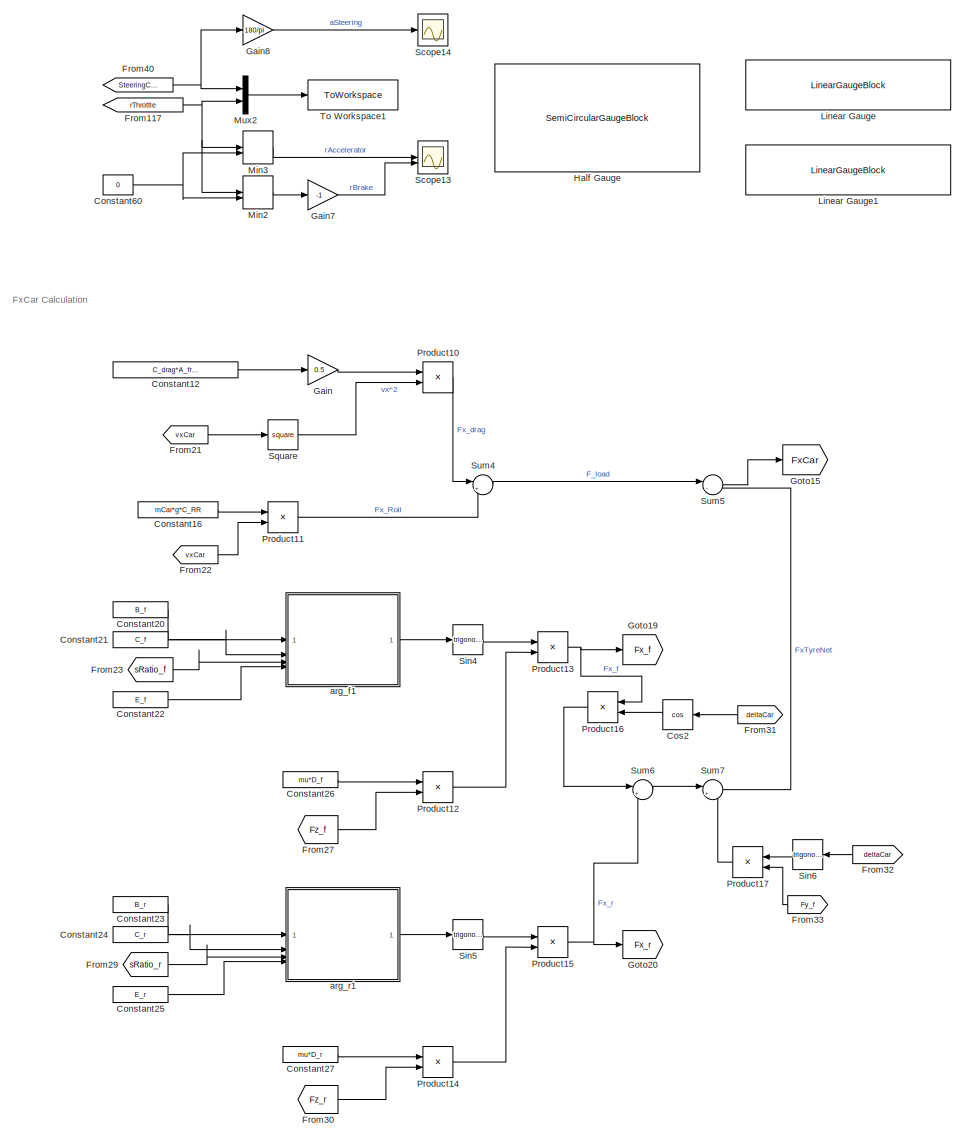
[diagram: root canvas - part 1/10, top center region]
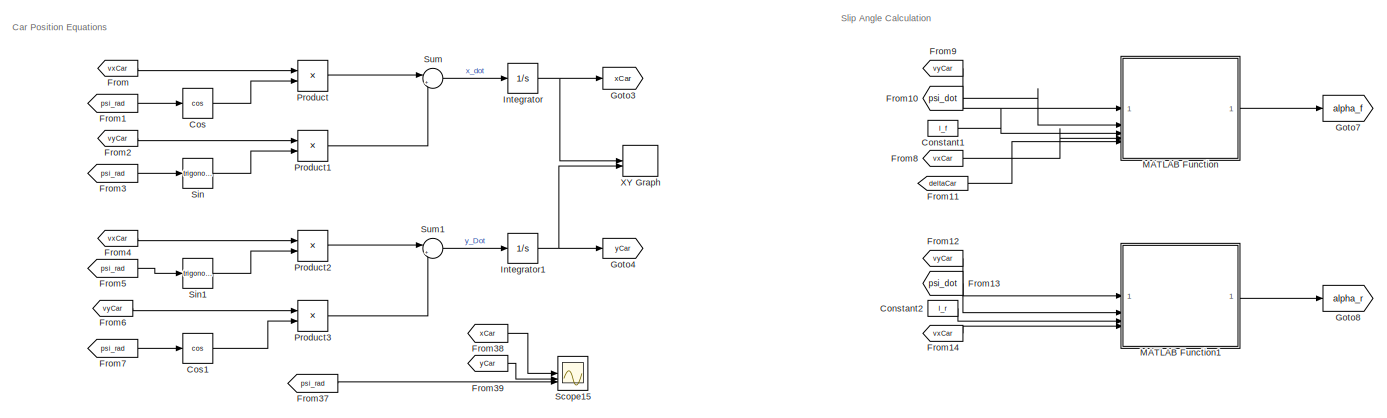
[diagram: root canvas - part 2/10, top left region]
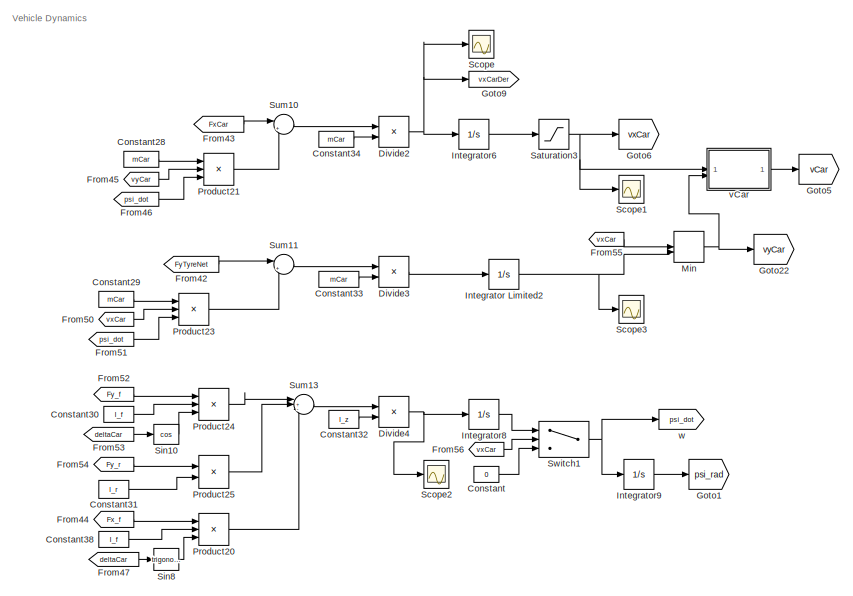
[diagram: root canvas - part 3/10, top center region]
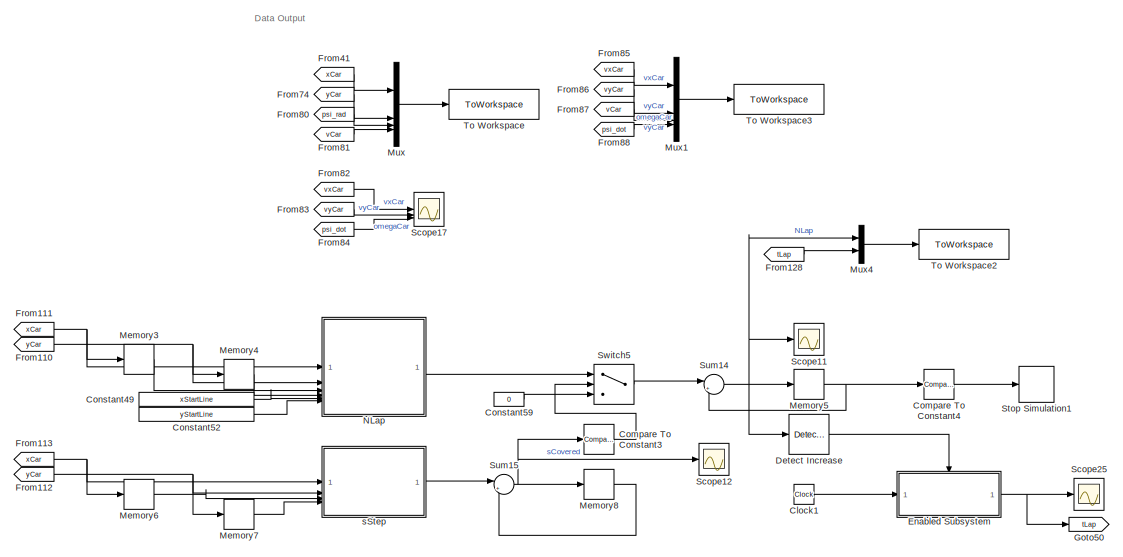
[diagram: root canvas - part 4/10, top right region]
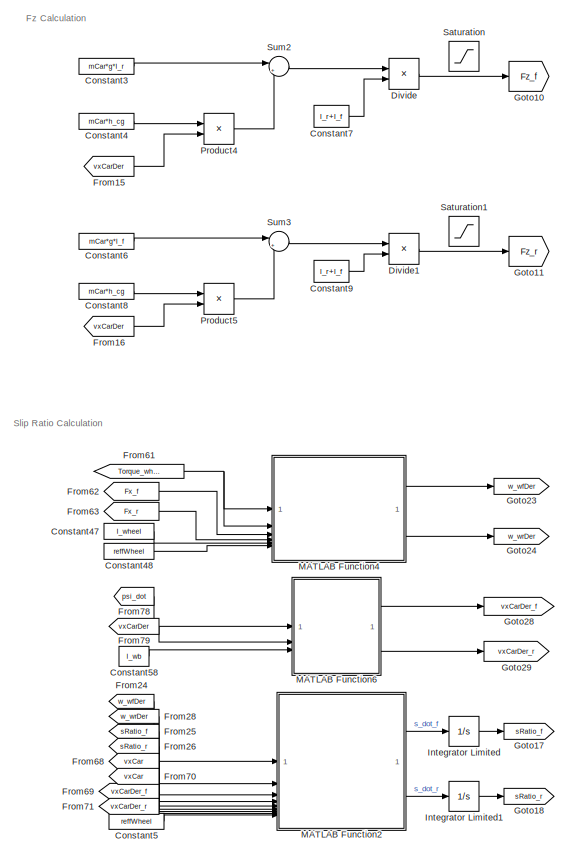
[diagram: root canvas - part 5/10, middle left region]
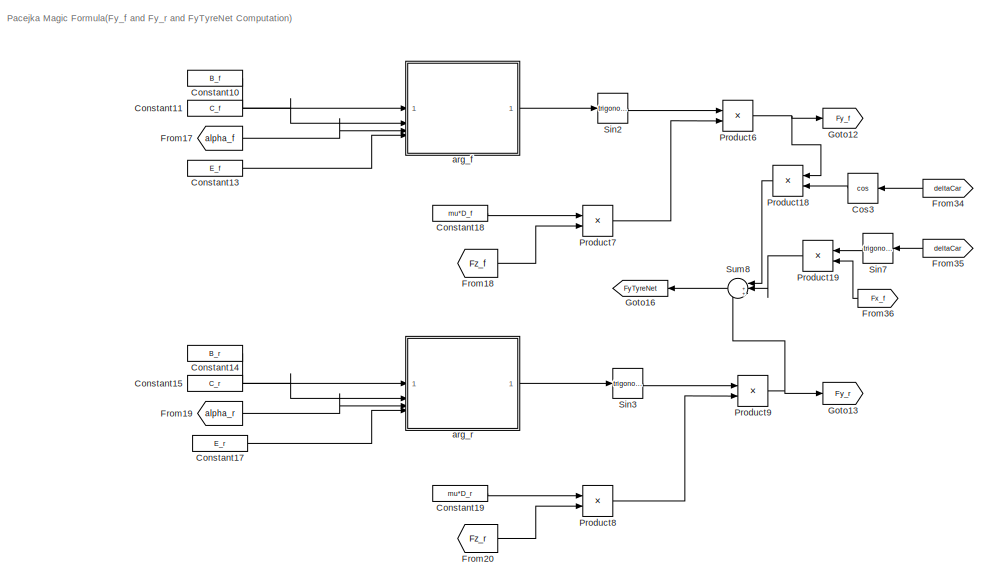
[diagram: root canvas - part 6/10, middle left region]
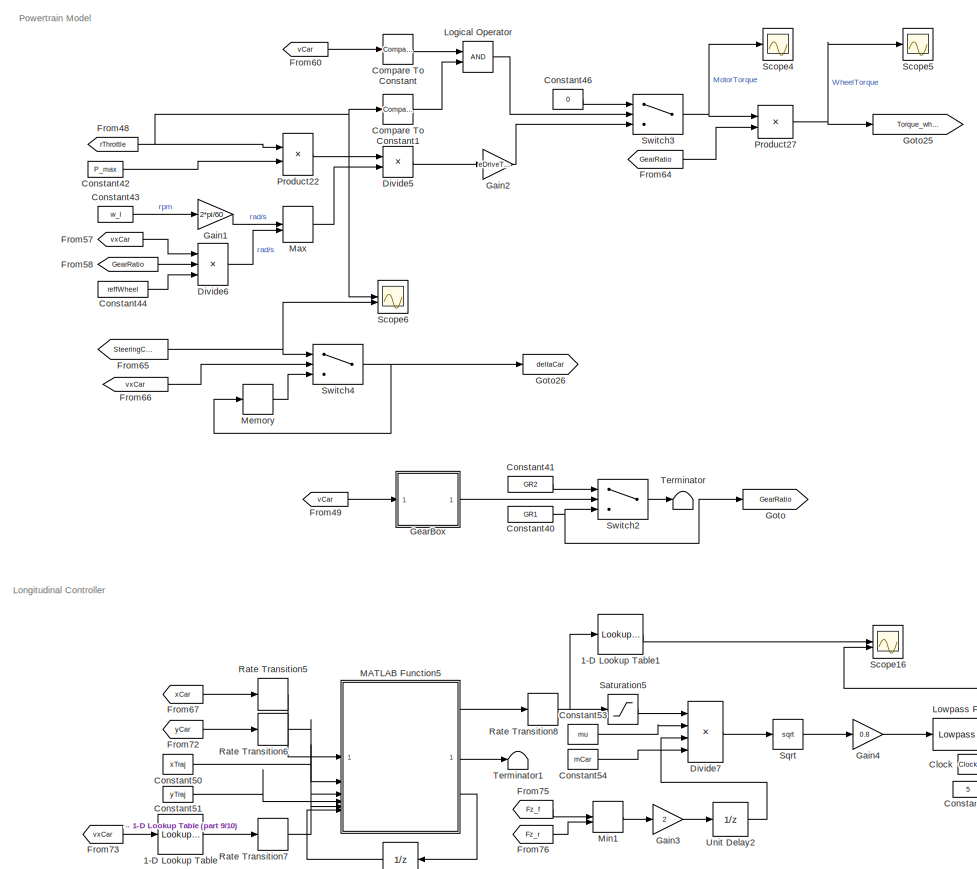
[diagram: root canvas - part 7/10, bottom right region]
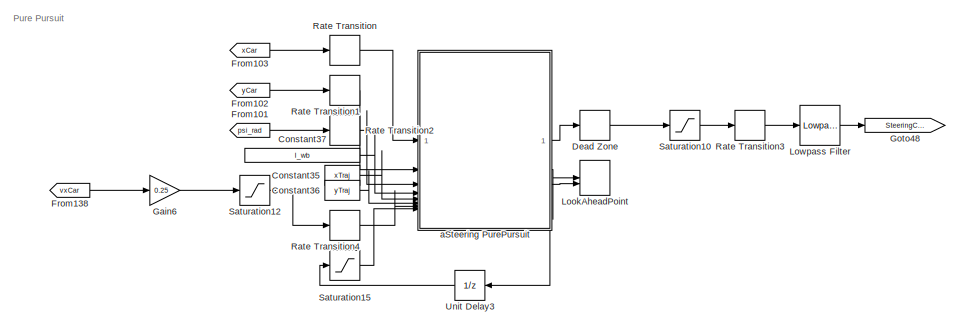
[diagram: root canvas - part 8/10, bottom center region]
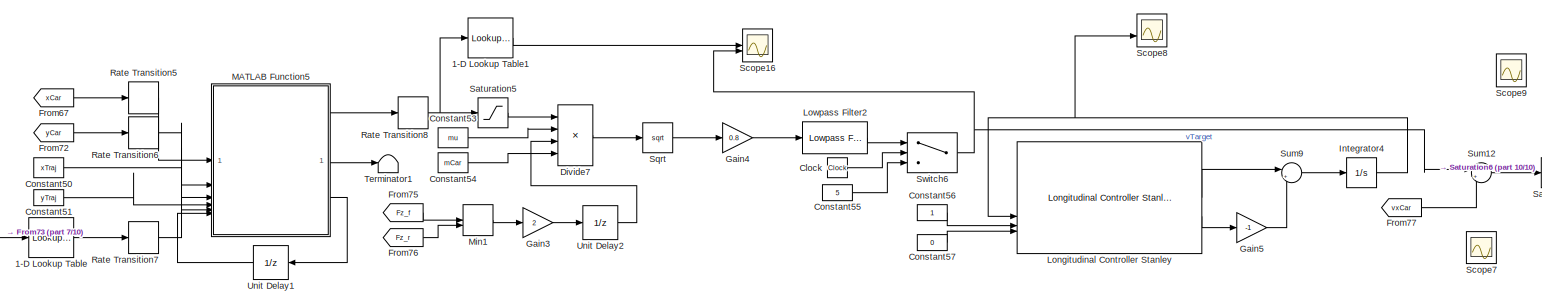
[diagram: root canvas - part 9/10, bottom right region]
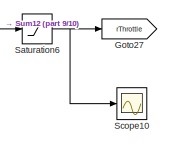
[diagram: root canvas - part 10/10, bottom right region]
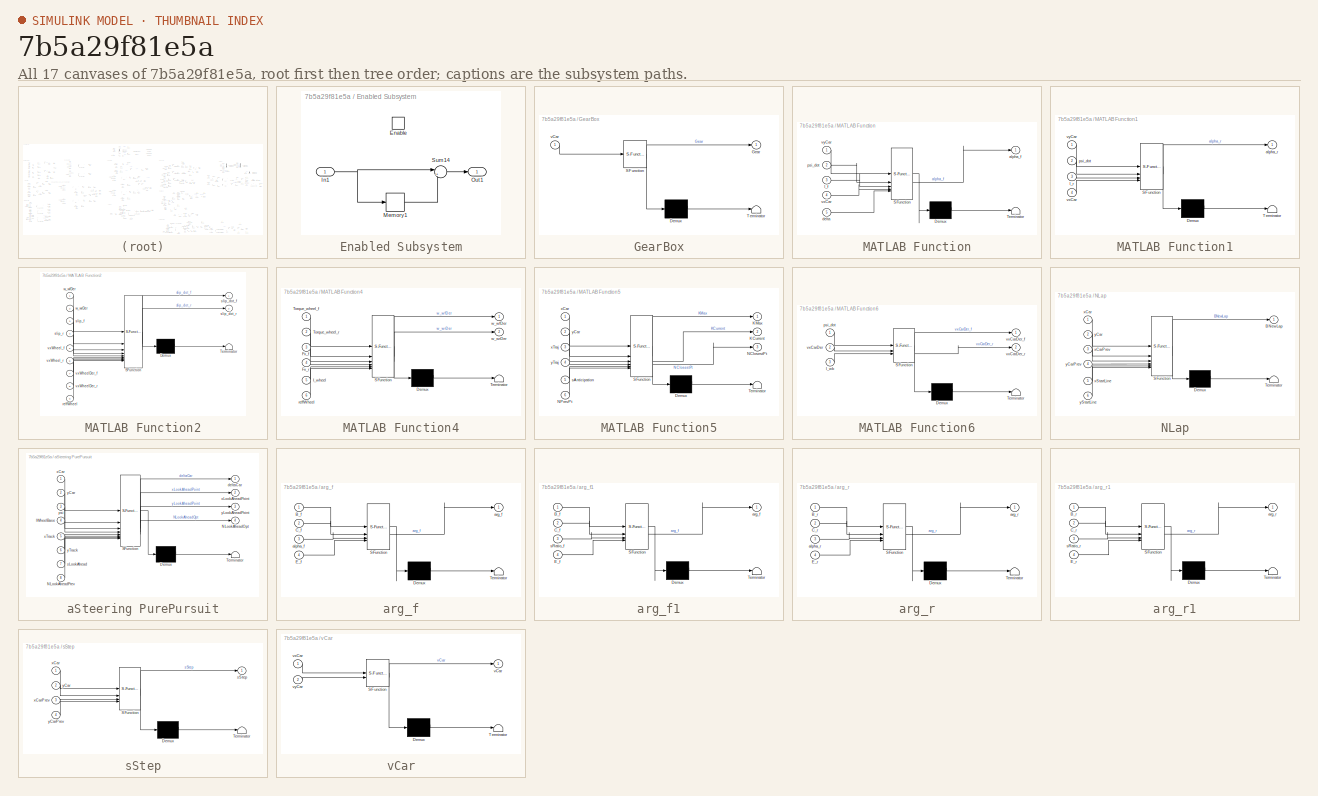
[diagram: thumbnail index - all 17 canvases of the model, root first then tree order]
MODEL slx_7b5a29f81e5a
KIND model
CONFIG AbsTol = auto
CONFIG EnableMultiTasking = off
CONFIG FixedStep = 1e-3
CONFIG MaxStep = auto
CONFIG MinStep = auto
CONFIG PreLoadFcn = addpath(genpath(pwd));\n\n% ======================================================================= %\n%% Physics Paramters\n\ng = 9.81;           % [m/s2]\nrho_air = 1.2;      % [kg/m3]\n\n% ======================================================================= %\n%% Tire Paramters\n\nmu = 1;           % [-]\n\nB_f = 3.12;\nB_r = 2.91;\nC_f = 2.23;\nC_r = 2.23;\nD_f = 0.72;\nD_r = 1.21;\nE_f = 0.23;\nE_r = 0.92;\n\n%...<+1539ch>
CONFIG RelTol = 1e-3
CONFIG SampleTimeConstraint = Unconstrained
CONFIG SolverName = FixedStepAuto
CONFIG StartTime = 0.0
CONFIG StopFcn = Data1=out.CarPosition.Data;\n\nfigure(2)\ncmap = colormap(jet);\ns=scatter(Data1(:,1),Data1(:,2),0.1,Data1(:,4),'.'); \nc=colorbar;\nylabel(c,'v_{Car} (m/s)')\n\nhold on\nplot(xCentre, yCentre, 'k')\nplot(xRightside,yRigthside,'k--')\nk=plot(xLeftside ,yLeftside ,'k--');\nsf=plot(xStartLine,yStartLine,'k-.');\n\ns.Annotation.LegendInformation.IconDisplayStyle = 'off';\nk.Annotation.LegendInformation.IconDisplayS...<+248ch>
CONFIG StopTime = 150
BLOCK [Lookup_n-D] 1-D Lookup Table
  BreakpointsForDimension1 = [7.5, 10, 15, 20]
  ExtrapMethod = Clip
  InputPortMap = u0
  InternalRulePriority = Speed
  NumberOfTableDimensions = 1
  RndMeth = Simplest
  Table = [5, 10, 25, 40]
BLOCK [Lookup_n-D] 1-D Lookup Table1
  BreakpointsForDimension1 = [0,0.04,0.1,0.2,0.3,0.5]*1
  ExtrapMethod = Clip
  InputPortMap = u0
  InternalRulePriority = Speed
  NumberOfTableDimensions = 1
  RndMeth = Simplest
  Table = [20, 10, 9, 6, 5, 4]
BLOCK [Clock] Clock
BLOCK [Clock] Clock1
BLOCK [Reference] Compare To Constant  REF=simulink/Logic and Bit
Operations/Compare
To Constant
  SourceBlock = simulink/Logic and Bit\nOperations/Compare\nTo Constant
  SourceType = Compare To Constant
BLOCK [Reference] Compare To Constant1  REF=simulink/Logic and Bit
Operations/Compare
To Constant
  SourceBlock = simulink/Logic and Bit\nOperations/Compare\nTo Constant
  SourceType = Compare To Constant
BLOCK [Reference] Compare To Constant3  REF=simulink/Logic and Bit
Operations/Compare
To Constant
  SourceBlock = simulink/Logic and Bit\nOperations/Compare\nTo Constant
  SourceType = Compare To Constant
BLOCK [Reference] Compare To Constant4  REF=simulink/Logic and Bit
Operations/Compare
To Constant
  SourceBlock = simulink/Logic and Bit\nOperations/Compare\nTo Constant
  SourceType = Compare To Constant
BLOCK [Constant] Constant
  Value = 0
BLOCK [Constant] Constant1
  Value = l_f
BLOCK [Constant] Constant10
  Value = B_f
BLOCK [Constant] Constant11
  Value = C_f
BLOCK [Constant] Constant12
  Value = C_drag*A_frontal*rho_air
BLOCK [Constant] Constant13
  Value = E_f
BLOCK [Constant] Constant14
  Value = B_r
BLOCK [Constant] Constant15
  Value = C_r
BLOCK [Constant] Constant16
  Value = mCar*g*C_RR
BLOCK [Constant] Constant17
  Value = E_r
BLOCK [Constant] Constant18
  Value = mu*D_f
BLOCK [Constant] Constant19
  Value = mu*D_r
BLOCK [Constant] Constant2
  Value = l_r
BLOCK [Constant] Constant20
  Value = B_f
BLOCK [Constant] Constant21
  Value = C_f
BLOCK [Constant] Constant22
  Value = E_f
BLOCK [Constant] Constant23
  Value = B_r
BLOCK [Constant] Constant24
  Value = C_r
BLOCK [Constant] Constant25
  Value = E_r
BLOCK [Constant] Constant26
  Value = mu*D_f
BLOCK [Constant] Constant27
  Value = mu*D_r
BLOCK [Constant] Constant28
  Value = mCar
BLOCK [Constant] Constant29
  Value = mCar
BLOCK [Constant] Constant3
  Value = mCar*g*l_r
BLOCK [Constant] Constant30
  Value = l_f
BLOCK [Constant] Constant31
  Value = l_r
BLOCK [Constant] Constant32
  Value = I_z
BLOCK [Constant] Constant33
  Value = mCar
BLOCK [Constant] Constant34
  Value = mCar
BLOCK [Constant] Constant35
  Value = xTraj
BLOCK [Constant] Constant36
  Value = yTraj
BLOCK [Constant] Constant37
  Value = l_wb
BLOCK [Constant] Constant38
  Value = l_f
BLOCK [Constant] Constant4
  Value = mCar*h_cg
BLOCK [Constant] Constant40
  Value = GR1
BLOCK [Constant] Constant41
  Value = GR2
BLOCK [Constant] Constant42
  Value = P_max
BLOCK [Constant] Constant43
  Value = w_l
BLOCK [Constant] Constant44
  Value = reffWheel
BLOCK [Constant] Constant46
  Value = 0
BLOCK [Constant] Constant47
  Value = I_wheel
BLOCK [Constant] Constant48
  Value = reffWheel
BLOCK [Constant] Constant49
  Value = xStartLine
BLOCK [Constant] Constant5
  Value = reffWheel
BLOCK [Constant] Constant50
  Value = xTraj
BLOCK [Constant] Constant51
  Value = yTraj
BLOCK [Constant] Constant52
  Value = yStartLine
BLOCK [Constant] Constant53
  Value = mu
BLOCK [Constant] Constant54
  Value = mCar
BLOCK [Constant] Constant55
  Value = 5
BLOCK [Constant] Constant56
  Commented = on
BLOCK [Constant] Constant57
  Commented = on
  Value = 0
BLOCK [Constant] Constant58
  Value = l_wb
BLOCK [Constant] Constant59
  Value = 0
BLOCK [Constant] Constant6
  Value = mCar*g*l_f
BLOCK [Constant] Constant60
  Value = 0
BLOCK [Constant] Constant7
  Value = l_r+l_f
BLOCK [Constant] Constant8
  Value = mCar*h_cg
BLOCK [Constant] Constant9
  Value = l_r+l_f
BLOCK [Trigonometry] Cos
  Operator = cos
BLOCK [Trigonometry] Cos1
  Operator = cos
BLOCK [Trigonometry] Cos2
  Operator = cos
BLOCK [Trigonometry] Cos3
  Operator = cos
BLOCK [DeadZone] Dead Zone
  LowerValue = -0.5*pi/180
  UpperValue = 0.5*pi/180
BLOCK [Reference] Detect Increase  REF=simulink/Logic and Bit
Operations/Detect
Increase
  SourceBlock = simulink/Logic and Bit\nOperations/Detect\nIncrease
  SourceType = Detect Increase
BLOCK [Product] Divide
  Inputs = */
BLOCK [Product] Divide1
  Inputs = */
BLOCK [Product] Divide2
  Inputs = */
BLOCK [Product] Divide3
  Inputs = */
BLOCK [Product] Divide4
  Inputs = */
BLOCK [Product] Divide5
  Inputs = */
BLOCK [Product] Divide6
  Inputs = **/
BLOCK [Product] Divide7
  Inputs = /**/
BLOCK [SubSystem] Enabled Subsystem
  TreatAsAtomicUnit = on
BLOCK [EnablePort] Enabled Subsystem/Enable
BLOCK [Inport] Enabled Subsystem/In1
BLOCK [Memory] Enabled Subsystem/Memory1
BLOCK [Outport] Enabled Subsystem/Out1
BLOCK [Sum] Enabled Subsystem/Sum14
  Inputs = |+-
BLOCK [From] From
  GotoTag = vxCar
BLOCK [From] From1
  GotoTag = psi_rad
BLOCK [From] From10
  GotoTag = psi_dot
BLOCK [From] From101
  GotoTag = psi_rad
BLOCK [From] From102
  GotoTag = yCar
BLOCK [From] From103
  GotoTag = xCar
BLOCK [From] From11
  GotoTag = deltaCar
BLOCK [From] From110
  GotoTag = yCar
BLOCK [From] From111
  GotoTag = xCar
BLOCK [From] From112
  GotoTag = yCar
BLOCK [From] From113
  GotoTag = xCar
BLOCK [From] From117
  GotoTag = rThrottle
BLOCK [From] From12
  GotoTag = vyCar
BLOCK [From] From128
  GotoTag = tLap
BLOCK [From] From13
  GotoTag = psi_dot
BLOCK [From] From138
  GotoTag = vxCar
BLOCK [From] From14
  GotoTag = vxCar
BLOCK [From] From15
  GotoTag = vxCarDer
BLOCK [From] From16
  GotoTag = vxCarDer
BLOCK [From] From17
  GotoTag = alpha_f
BLOCK [From] From18
  GotoTag = Fz_f
BLOCK [From] From19
  GotoTag = alpha_r
BLOCK [From] From2
  GotoTag = vyCar
BLOCK [From] From20
  GotoTag = Fz_r
BLOCK [From] From21
  GotoTag = vxCar
BLOCK [From] From22
  GotoTag = vxCar
BLOCK [From] From23
  GotoTag = sRatio_f
BLOCK [From] From24
  GotoTag = w_wfDer
BLOCK [From] From25
  GotoTag = sRatio_f
BLOCK [From] From26
  GotoTag = sRatio_r
BLOCK [From] From27
  GotoTag = Fz_f
BLOCK [From] From28
  GotoTag = w_wrDer
BLOCK [From] From29
  GotoTag = sRatio_r
BLOCK [From] From3
  GotoTag = psi_rad
BLOCK [From] From30
  GotoTag = Fz_r
BLOCK [From] From31
  GotoTag = deltaCar
BLOCK [From] From32
  GotoTag = deltaCar
BLOCK [From] From33
  GotoTag = Fy_f
BLOCK [From] From34
  GotoTag = deltaCar
BLOCK [From] From35
  GotoTag = deltaCar
BLOCK [From] From36
  GotoTag = Fx_f
BLOCK [From] From37
  GotoTag = psi_rad
BLOCK [From] From38
  GotoTag = xCar
BLOCK [From] From39
  GotoTag = yCar
BLOCK [From] From4
  GotoTag = vxCar
BLOCK [From] From40
  GotoTag = SteeringCmd
BLOCK [From] From41
  GotoTag = xCar
BLOCK [From] From42
  GotoTag = FyTyreNet
  NameLocation = top
BLOCK [From] From43
  GotoTag = FxCar
BLOCK [From] From44
  GotoTag = Fx_f
BLOCK [From] From45
  GotoTag = vyCar
BLOCK [From] From46
  GotoTag = psi_dot
BLOCK [From] From47
  GotoTag = deltaCar
BLOCK [From] From48
  GotoTag = rThrottle
BLOCK [From] From49
  GotoTag = vCar
BLOCK [From] From5
  GotoTag = psi_rad
BLOCK [From] From50
  GotoTag = vxCar
BLOCK [From] From51
  GotoTag = psi_dot
BLOCK [From] From52
  GotoTag = Fy_f
BLOCK [From] From53
  GotoTag = deltaCar
BLOCK [From] From54
  GotoTag = Fy_r
BLOCK [From] From55
  GotoTag = vxCar
BLOCK [From] From56
  GotoTag = vxCar
BLOCK [From] From57
  GotoTag = vxCar
BLOCK [From] From58
  GotoTag = GearRatio
BLOCK [From] From6
  GotoTag = vyCar
BLOCK [From] From60
  GotoTag = vCar
BLOCK [From] From61
  GotoTag = Torque_wheels
BLOCK [From] From62
  GotoTag = Fx_f
BLOCK [From] From63
  GotoTag = Fx_r
BLOCK [From] From64
  GotoTag = GearRatio
BLOCK [From] From65
  GotoTag = SteeringCmd
BLOCK [From] From66
  GotoTag = vxCar
BLOCK [From] From67
  GotoTag = xCar
BLOCK [From] From68
  GotoTag = vxCar
BLOCK [From] From69
  GotoTag = vxCarDer_f
BLOCK [From] From7
  GotoTag = psi_rad
BLOCK [From] From70
  GotoTag = vxCar
BLOCK [From] From71
  GotoTag = vxCarDer_r
BLOCK [From] From72
  GotoTag = yCar
BLOCK [From] From73
  GotoTag = vxCar
BLOCK [From] From74
  GotoTag = yCar
BLOCK [From] From75
  GotoTag = Fz_f
BLOCK [From] From76
  GotoTag = Fz_r
BLOCK [From] From77
  GotoTag = vxCar
BLOCK [From] From78
  GotoTag = psi_dot
BLOCK [From] From79
  GotoTag = vxCarDer
BLOCK [From] From8
  GotoTag = vxCar
BLOCK [From] From80
  GotoTag = psi_rad
BLOCK [From] From81
  GotoTag = vCar
BLOCK [From] From82
  GotoTag = vxCar
BLOCK [From] From83
  GotoTag = vyCar
BLOCK [From] From84
  GotoTag = psi_dot
BLOCK [From] From85
  GotoTag = vxCar
BLOCK [From] From86
  GotoTag = vyCar
BLOCK [From] From87
  GotoTag = vCar
BLOCK [From] From88
  GotoTag = psi_dot
BLOCK [From] From9
  GotoTag = vyCar
BLOCK [Gain] Gain
  Gain = 0.5
BLOCK [Gain] Gain1
  Gain = 2*pi/60
BLOCK [Gain] Gain2
  Gain = eDriveTrain/4
BLOCK [Gain] Gain3
  Gain = 2
BLOCK [Gain] Gain4
  Gain = 0.8
BLOCK [Gain] Gain5
  Commented = on
  Gain = -1
BLOCK [Gain] Gain6
  Gain = 0.25
BLOCK [Gain] Gain7
  Gain = -1
BLOCK [Gain] Gain8
  Gain = 180/pi
BLOCK [SubSystem] GearBox
  ErrorFcn = Stateflow.Translate.translate
  PermitHierarchicalResolution = ExplicitOnly
  SFBlockType = Chart
  TreatAsAtomicUnit = on
BLOCK [Demux] GearBox/ Demux 
  Outputs = 1
BLOCK [S-Function] GearBox/ SFunction 
  EnableBusSupport = on
  FunctionName = sf_sfun
  PortCounts = [1 2]
  SFcnIsStateOwnerBlock = off
  SFunctionDeploymentMode = off
  Tag = Stateflow S-Function 11
BLOCK [Terminator] GearBox/ Terminator 
BLOCK [Outport] GearBox/Gear
BLOCK [Inport] GearBox/vCar
BLOCK [Goto] Goto
  GotoTag = GearRatio
BLOCK [Goto] Goto1
  GotoTag = psi_rad
BLOCK [Goto] Goto10
  GotoTag = Fz_f
BLOCK [Goto] Goto11
  GotoTag = Fz_r
BLOCK [Goto] Goto12
  GotoTag = Fy_f
BLOCK [Goto] Goto13
  GotoTag = Fy_r
BLOCK [Goto] Goto15
  GotoTag = FxCar
BLOCK [Goto] Goto16
  GotoTag = FyTyreNet
BLOCK [Goto] Goto17
  GotoTag = sRatio_f
BLOCK [Goto] Goto18
  GotoTag = sRatio_r
BLOCK [Goto] Goto19
  GotoTag = Fx_f
BLOCK [Goto] Goto20
  GotoTag = Fx_r
BLOCK [Goto] Goto22
  GotoTag = vyCar
BLOCK [Goto] Goto23
  GotoTag = w_wfDer
BLOCK [Goto] Goto24
  GotoTag = w_wrDer
BLOCK [Goto] Goto25
  GotoTag = Torque_wheels
BLOCK [Goto] Goto26
  GotoTag = deltaCar
BLOCK [Goto] Goto27
  GotoTag = rThrottle
BLOCK [Goto] Goto28
  GotoTag = vxCarDer_f
BLOCK [Goto] Goto29
  GotoTag = vxCarDer_r
BLOCK [Goto] Goto3
  GotoTag = xCar
BLOCK [Goto] Goto4
  GotoTag = yCar
BLOCK [Goto] Goto48
  GotoTag = SteeringCmd
BLOCK [Goto] Goto5
  GotoTag = vCar
BLOCK [Goto] Goto50
  GotoTag = tLap
BLOCK [Goto] Goto6
  GotoTag = vxCar
BLOCK [Goto] Goto7
  GotoTag = alpha_f
BLOCK [Goto] Goto8
  GotoTag = alpha_r
BLOCK [Goto] Goto9
  GotoTag = vxCarDer
BLOCK [SemiCircularGaugeBlock] Half Gauge
  LabelPosition = Bottom
  ScaleMax = 5
  ScaleMin = -5
BLOCK [Integrator] Integrator
BLOCK [Integrator] Integrator Limited
  LimitOutput = on
  LowerSaturationLimit = -10*pi/180
  UpperSaturationLimit = 10*pi/180
BLOCK [Integrator] Integrator Limited1
  LimitOutput = on
  LowerSaturationLimit = -10*pi/180
  UpperSaturationLimit = 10*pi/180
BLOCK [Integrator] Integrator Limited2
  LimitOutput = on
  LowerSaturationLimit = -1
  UpperSaturationLimit = 1
BLOCK [Integrator] Integrator1
BLOCK [Integrator] Integrator4
  Commented = on
BLOCK [Integrator] Integrator6
BLOCK [Integrator] Integrator8
BLOCK [Integrator] Integrator9
BLOCK [LinearGaugeBlock] Linear Gauge
  ScaleMax = 1
BLOCK [LinearGaugeBlock] Linear Gauge1
  ScaleMax = 1
BLOCK [Logic] Logical Operator
  AllPortsSameDT = off
  OutDataTypeStr = boolean
BLOCK [Reference] Longitudinal Controller Stanley  REF=drivingvehiclecontroller/Longitudinal Controller Stanley
  Commented = on
  SourceBlock = drivingvehiclecontroller/Longitudinal Controller Stanley
  SourceType = Longitudinal Controller Stanley
BLOCK [Record] LookAheadPoint
  Commented = on
  CompatibilityTag = XY
  FileSettingsInternal = {"entries":[{"content":{"excelSettings":{"content":{},"type":"Streamout.ExcelSettings"}},"type":"Streamout.FileSettingStorage","uuid":""}],"packageUris":["http:\/\/schema.mathworks.com\/mf0\/streamout_blocks\/R2020a"],"version":"1.0"}
  Layout = [1 1]
  SignalsInternal = {"entries":[{"content":{"signals":[{"content":{"blockPath":[],"dimensions":[1],"domain":"","lineColor":"#a2142f","plots":[1],"port":1,"signalID":34,"signalName":"XY Graph:1"},"type":"RecordBlkView.Signal","uuid":""},{"content":{"blockPath":[],"dimensions":[1],"domain":"","lineColor":"#139fff","plots":[1],"port":2,"signalID":37,"signalName":"XY Graph:2"},"type":"RecordBlkView.Signal","uuid":""}]},"...<+142ch>
  VisualizationBindings = {"xyplotplugin":{"info":[{"series":[{"bindingParametersList":[{"parameter":"X-Axis","signalID":34,"signalName":"XY Graph:1"},{"parameter":"Y-Axis","signalID":37,"signalName":"XY Graph:2"}],"seriesID":34788}],"subplotID":1}]}}
  st = -1
BLOCK [Reference] Lowpass Filter  REF=dspfdesign/Lowpass Filter
  SourceBlock = dspfdesign/Lowpass Filter
  SourceType = dsp.simulink.LowpassFilter
BLOCK [Reference] Lowpass Filter2  REF=dspfdesign/Lowpass Filter
  SourceBlock = dspfdesign/Lowpass Filter
  SourceType = dsp.simulink.LowpassFilter
BLOCK [SubSystem] MATLAB Function
  ErrorFcn = Stateflow.Translate.translate
  LibrarySourceBlock = simulink/User-Defined\nFunctions/MATLAB Function
  PermitHierarchicalResolution = ExplicitOnly
  SFBlockType = MATLAB Function
  TreatAsAtomicUnit = on
BLOCK [Demux] MATLAB Function/ Demux 
  Outputs = 1
BLOCK [S-Function] MATLAB Function/ SFunction 
  EnableBusSupport = on
  FunctionName = sf_sfun
  PortCounts = [5 2]
  SFcnIsStateOwnerBlock = off
  SFunctionDeploymentMode = off
  Tag = Stateflow S-Function 2
BLOCK [Terminator] MATLAB Function/ Terminator 
BLOCK [Outport] MATLAB Function/alpha_f
BLOCK [Inport] MATLAB Function/delta
  Port = 5
BLOCK [Inport] MATLAB Function/l_f
  Port = 3
BLOCK [Inport] MATLAB Function/psi_dot
  Port = 2
BLOCK [Inport] MATLAB Function/vxCar
  Port = 4
BLOCK [Inport] MATLAB Function/vyCar
BLOCK [SubSystem] MATLAB Function1
  ErrorFcn = Stateflow.Translate.translate
  LibrarySourceBlock = simulink/User-Defined\nFunctions/MATLAB Function
  PermitHierarchicalResolution = ExplicitOnly
  SFBlockType = MATLAB Function
  TreatAsAtomicUnit = on
BLOCK [Demux] MATLAB Function1/ Demux 
  Outputs = 1
BLOCK [S-Function] MATLAB Function1/ SFunction 
  EnableBusSupport = on
  FunctionName = sf_sfun
  PortCounts = [4 2]
  SFcnIsStateOwnerBlock = off
  SFunctionDeploymentMode = off
  Tag = Stateflow S-Function 1
BLOCK [Terminator] MATLAB Function1/ Terminator 
BLOCK [Outport] MATLAB Function1/alpha_r
BLOCK [Inport] MATLAB Function1/l_r
  Port = 3
BLOCK [Inport] MATLAB Function1/psi_dot
  Port = 2
BLOCK [Inport] MATLAB Function1/vxCar
  Port = 4
BLOCK [Inport] MATLAB Function1/vyCar
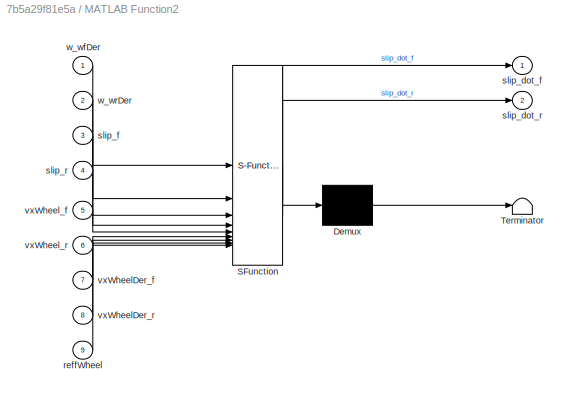
BLOCK [SubSystem] MATLAB Function2
  ErrorFcn = Stateflow.Translate.translate
  LibrarySourceBlock = simulink/User-Defined\nFunctions/MATLAB Function
  PermitHierarchicalResolution = ExplicitOnly
  SFBlockType = MATLAB Function
  TreatAsAtomicUnit = on
BLOCK [Demux] MATLAB Function2/ Demux 
  Outputs = 1
BLOCK [S-Function] MATLAB Function2/ SFunction 
  EnableBusSupport = on
  FunctionName = sf_sfun
  PortCounts = [9 3]
  SFcnIsStateOwnerBlock = off
  SFunctionDeploymentMode = off
  Tag = Stateflow S-Function 5
BLOCK [Terminator] MATLAB Function2/ Terminator 
BLOCK [Inport] MATLAB Function2/reffWheel
  Port = 9
BLOCK [Outport] MATLAB Function2/slip_dot_f
BLOCK [Outport] MATLAB Function2/slip_dot_r
  Port = 2
BLOCK [Inport] MATLAB Function2/slip_f
  Port = 3
BLOCK [Inport] MATLAB Function2/slip_r
  Port = 4
BLOCK [Inport] MATLAB Function2/vxWheelDer_f
  Port = 7
BLOCK [Inport] MATLAB Function2/vxWheelDer_r
  Port = 8
BLOCK [Inport] MATLAB Function2/vxWheel_f
  Port = 5
BLOCK [Inport] MATLAB Function2/vxWheel_r
  Port = 6
BLOCK [Inport] MATLAB Function2/w_wfDer
BLOCK [Inport] MATLAB Function2/w_wrDer
  Port = 2
BLOCK [SubSystem] MATLAB Function4
  ErrorFcn = Stateflow.Translate.translate
  LibrarySourceBlock = simulink/User-Defined\nFunctions/MATLAB Function
  PermitHierarchicalResolution = ExplicitOnly
  SFBlockType = MATLAB Function
  TreatAsAtomicUnit = on
BLOCK [Demux] MATLAB Function4/ Demux 
  Outputs = 1
BLOCK [S-Function] MATLAB Function4/ SFunction 
  EnableBusSupport = on
  FunctionName = sf_sfun
  PortCounts = [6 3]
  SFcnIsStateOwnerBlock = off
  SFunctionDeploymentMode = off
  Tag = Stateflow S-Function 13
BLOCK [Terminator] MATLAB Function4/ Terminator 
BLOCK [Inport] MATLAB Function4/Fx_f
  Port = 3
BLOCK [Inport] MATLAB Function4/Fx_r
  Port = 4
BLOCK [Inport] MATLAB Function4/I_wheel
  Port = 5
BLOCK [Inport] MATLAB Function4/Torque_wheel_f
BLOCK [Inport] MATLAB Function4/Torque_wheel_r
  Port = 2
BLOCK [Inport] MATLAB Function4/reffWheel
  Port = 6
BLOCK [Outport] MATLAB Function4/w_wfDer
BLOCK [Outport] MATLAB Function4/w_wrDer
  Port = 2
BLOCK [SubSystem] MATLAB Function5
  ErrorFcn = Stateflow.Translate.translate
  LibrarySourceBlock = simulink/User-Defined\nFunctions/MATLAB Function
  PermitHierarchicalResolution = ExplicitOnly
  SFBlockType = MATLAB Function
  TreatAsAtomicUnit = on
BLOCK [Demux] MATLAB Function5/ Demux 
  Outputs = 1
BLOCK [S-Function] MATLAB Function5/ SFunction 
  EnableBusSupport = on
  FunctionName = sf_sfun
  PortCounts = [6 4]
  SFcnIsStateOwnerBlock = off
  SFunctionDeploymentMode = off
  Tag = Stateflow S-Function 14
BLOCK [Terminator] MATLAB Function5/ Terminator 
BLOCK [Outport] MATLAB Function5/KCurrent
  Port = 2
BLOCK [Outport] MATLAB Function5/KMax
BLOCK [Outport] MATLAB Function5/NClosestPt
  Port = 3
BLOCK [Inport] MATLAB Function5/NPrevPt
  Port = 6
BLOCK [Inport] MATLAB Function5/sAnticipation
  Port = 5
BLOCK [Inport] MATLAB Function5/xCar
BLOCK [Inport] MATLAB Function5/xTraj
  Port = 3
BLOCK [Inport] MATLAB Function5/yCar
  Port = 2
BLOCK [Inport] MATLAB Function5/yTraj
  Port = 4
BLOCK [SubSystem] MATLAB Function6
  ErrorFcn = Stateflow.Translate.translate
  LibrarySourceBlock = simulink/User-Defined\nFunctions/MATLAB Function
  PermitHierarchicalResolution = ExplicitOnly
  SFBlockType = MATLAB Function
  TreatAsAtomicUnit = on
BLOCK [Demux] MATLAB Function6/ Demux 
  Outputs = 1
BLOCK [S-Function] MATLAB Function6/ SFunction 
  EnableBusSupport = on
  FunctionName = sf_sfun
  PortCounts = [3 3]
  SFcnIsStateOwnerBlock = off
  SFunctionDeploymentMode = off
  Tag = Stateflow S-Function 15
BLOCK [Terminator] MATLAB Function6/ Terminator 
BLOCK [Inport] MATLAB Function6/l_wb
  Port = 3
BLOCK [Inport] MATLAB Function6/psi_dot
BLOCK [Inport] MATLAB Function6/vxCarDer
  Port = 2
BLOCK [Outport] MATLAB Function6/vxCarDer_f
BLOCK [Outport] MATLAB Function6/vxCarDer_r
  Port = 2
BLOCK [MinMax] Max
  Function = max
  Inputs = 2
BLOCK [Memory] Memory
BLOCK [Memory] Memory3
BLOCK [Memory] Memory4
BLOCK [Memory] Memory5
  InitialCondition = 1
BLOCK [Memory] Memory6
BLOCK [Memory] Memory7
BLOCK [Memory] Memory8
BLOCK [MinMax] Min
  Inputs = 2
BLOCK [MinMax] Min1
  Inputs = 2
BLOCK [MinMax] Min2
  Inputs = 2
BLOCK [MinMax] Min3
  Function = max
  Inputs = 2
BLOCK [Mux] Mux
  DisplayOption = bar
BLOCK [Mux] Mux1
  DisplayOption = bar
BLOCK [Mux] Mux2
  DisplayOption = bar
  Inputs = 2
BLOCK [Mux] Mux4
  DisplayOption = bar
  Inputs = 2
BLOCK [SubSystem] NLap
  ErrorFcn = Stateflow.Translate.translate
  PermitHierarchicalResolution = ExplicitOnly
  SFBlockType = MATLAB Function
  TreatAsAtomicUnit = on
BLOCK [Demux] NLap/ Demux 
  Outputs = 1
BLOCK [S-Function] NLap/ SFunction 
  EnableBusSupport = on
  FunctionName = sf_sfun
  PortCounts = [6 2]
  SFcnIsStateOwnerBlock = off
  SFunctionDeploymentMode = off
  Tag = Stateflow S-Function 16
BLOCK [Terminator] NLap/ Terminator 
BLOCK [Outport] NLap/BNewLap
BLOCK [Inport] NLap/xCar
BLOCK [Inport] NLap/xCarPrev
  Port = 3
BLOCK [Inport] NLap/xStartLine
  Port = 5
BLOCK [Inport] NLap/yCar
  Port = 2
BLOCK [Inport] NLap/yCarPrev
  Port = 4
BLOCK [Inport] NLap/yStartLine
  Port = 6
BLOCK [Product] Product
BLOCK [Product] Product1
BLOCK [Product] Product10
BLOCK [Product] Product11
BLOCK [Product] Product12
BLOCK [Product] Product13
BLOCK [Product] Product14
BLOCK [Product] Product15
BLOCK [Product] Product16
BLOCK [Product] Product17
BLOCK [Product] Product18
BLOCK [Product] Product19
BLOCK [Product] Product2
BLOCK [Product] Product20
  Inputs = 3
BLOCK [Product] Product21
  Inputs = 3
BLOCK [Product] Product22
BLOCK [Product] Product23
  Inputs = 3
BLOCK [Product] Product24
  Inputs = 3
BLOCK [Product] Product25
BLOCK [Product] Product27
BLOCK [Product] Product3
BLOCK [Product] Product4
BLOCK [Product] Product5
BLOCK [Product] Product6
BLOCK [Product] Product7
BLOCK [Product] Product8
BLOCK [Product] Product9
BLOCK [RateTransition] Rate Transition
  OutPortSampleTime = 0.01
BLOCK [RateTransition] Rate Transition1
  OutPortSampleTime = 0.01
BLOCK [RateTransition] Rate Transition2
  OutPortSampleTime = 0.01
BLOCK [RateTransition] Rate Transition3
  OutPortSampleTime = 0.001
BLOCK [RateTransition] Rate Transition4
  OutPortSampleTime = 0.01
BLOCK [RateTransition] Rate Transition5
  OutPortSampleTime = 0.01
BLOCK [RateTransition] Rate Transition6
  OutPortSampleTime = 0.01
BLOCK [RateTransition] Rate Transition7
  OutPortSampleTime = 0.01
BLOCK [RateTransition] Rate Transition8
  OutPortSampleTime = 0.001
BLOCK [Saturate] Saturation
  Commented = on
  LowerLimit = -mCar*g/2
  UpperLimit = mCar*g
BLOCK [Saturate] Saturation1
  Commented = on
  LowerLimit = -mCar*g/2
  UpperLimit = mCar*g
BLOCK [Saturate] Saturation10
  LowerLimit = -26*pi/180
  UpperLimit = 26*pi/180
BLOCK [Saturate] Saturation12
  LowerLimit = 1
  UpperLimit = 5
BLOCK [Saturate] Saturation15
  LowerLimit = 1
  UpperLimit = 100
BLOCK [Saturate] Saturation3
  LowerLimit = 0
  UpperLimit = inf
BLOCK [Saturate] Saturation5
  LowerLimit = 0.01
  UpperLimit = inf
BLOCK [Saturate] Saturation6
  LowerLimit = -1
  UpperLimit = 1
BLOCK [Scope] Scope
  Floating = off
  NumInputPorts = 1
  ScopeSpecificationString = Simulink.scopes.TimeScopeBlockCfg('CurrentConfiguration', extmgr.ConfigurationSet(extmgr.Configuration('Core','General UI',true),extmgr.Configuration('Core','Source UI',true),extmgr.Configuration('Sources','WiredSimulink',true,'DataLoggingVariableName','ScopeData2'),extmgr.Configuration('Visuals','Time Domain',true),extmgr.Configuration('Tools','Plot Navigation',true),extmgr.Configuration('Tools',...<+40ch>  <repeated x3 — deduplicated; at blocks: Scope, Scope5, Scope8>
BLOCK [Scope] Scope1
  Floating = off
  NumInputPorts = 1
  ScopeSpecificationString = Simulink.scopes.TimeScopeBlockCfg('CurrentConfiguration', extmgr.ConfigurationSet(extmgr.Configuration('Core','General UI',true),extmgr.Configuration('Core','Source UI',true),extmgr.Configuration('Sources','WiredSimulink',true,'DataLoggingVariableName','ScopeData3'),extmgr.Configuration('Visuals','Time Domain',true),extmgr.Configuration('Tools','Plot Navigation',true),extmgr.Configuration('Tools',...<+40ch>  <repeated x3 — deduplicated; at blocks: Scope1, Scope15, Scope9>
BLOCK [Scope] Scope10
  Floating = off
  NumInputPorts = 1
  ScopeSpecificationString = Simulink.scopes.TimeScopeBlockCfg('CurrentConfiguration', extmgr.ConfigurationSet(extmgr.Configuration('Core','General UI',true),extmgr.Configuration('Core','Source UI',true),extmgr.Configuration('Sources','WiredSimulink',true,'DataLoggingVariableName','ScopeData4'),extmgr.Configuration('Visuals','Time Domain',true),extmgr.Configuration('Tools','Plot Navigation',true),extmgr.Configuration('Tools',...<+58ch>
BLOCK [Scope] Scope11
  Floating = off
  NumInputPorts = 1
  ScopeSpecificationString = Simulink.scopes.TimeScopeBlockCfg('CurrentConfiguration', extmgr.ConfigurationSet(extmgr.Configuration('Core','General UI',true),extmgr.Configuration('Core','Source UI',true),extmgr.Configuration('Sources','WiredSimulink',true,'DataLoggingVariableName','ScopeData1'),extmgr.Configuration('Visuals','Time Domain',true,'SerializedDisplays',{struct('MinYLimReal','0.5','MaxYLimReal','5.5','YLabelReal','...<+1655ch>
BLOCK [Scope] Scope12
  Floating = off
  NumInputPorts = 1
  ScopeSpecificationString = Simulink.scopes.TimeScopeBlockCfg('CurrentConfiguration', extmgr.ConfigurationSet(extmgr.Configuration('Core','General UI',true),extmgr.Configuration('Core','Source UI',true),extmgr.Configuration('Sources','WiredSimulink',true,'DataLoggingVariableName','ScopeData2'),extmgr.Configuration('Visuals','Time Domain',true,'SerializedDisplays',{struct('MinYLimReal','-236.93841','MaxYLimReal','2132.4457','...<+1412ch>
BLOCK [Scope] Scope13
  Floating = off
  NumInputPorts = 2
  ScopeSpecificationString = Simulink.scopes.TimeScopeBlockCfg('CurrentConfiguration', extmgr.ConfigurationSet(extmgr.Configuration('Core','General UI',true),extmgr.Configuration('Core','Source UI',true),extmgr.Configuration('Sources','WiredSimulink',true,'DataLoggingVariableName','ScopeData1'),extmgr.Configuration('Visuals','Time Domain',true),extmgr.Configuration('Tools','Plot Navigation',true),extmgr.Configuration('Tools',...<+40ch>  <repeated x3 — deduplicated; at blocks: Scope13, Scope4, Scope6>
BLOCK [Scope] Scope14
  Floating = off
  NumInputPorts = 1
  ScopeSpecificationString = Simulink.scopes.TimeScopeBlockCfg('CurrentConfiguration', extmgr.ConfigurationSet(extmgr.Configuration('Core','General UI',true),extmgr.Configuration('Core','Source UI',true),extmgr.Configuration('Sources','WiredSimulink',true,'DataLoggingVariableName','ScopeData2'),extmgr.Configuration('Visuals','Time Domain',true,'SerializedDisplays',{struct('MinYLimReal','-7.20001','MaxYLimReal','4.90339','YLab...<+1398ch>
BLOCK [Scope] Scope15
  Floating = off
  NumInputPorts = 3
BLOCK [Scope] Scope16
  Floating = off
  NumInputPorts = 2
  ScopeSpecificationString = Simulink.scopes.TimeScopeBlockCfg('CurrentConfiguration', extmgr.ConfigurationSet(extmgr.Configuration('Core','General UI',true),extmgr.Configuration('Core','Source UI',true),extmgr.Configuration('Sources','WiredSimulink',true,'DataLoggingVariableName','ScopeData4'),extmgr.Configuration('Visuals','Time Domain',true),extmgr.Configuration('Tools','Plot Navigation',true),extmgr.Configuration('Tools',...<+40ch>
BLOCK [Scope] Scope17
  Floating = off
  NumInputPorts = 3
  ScopeSpecificationString = Simulink.scopes.TimeScopeBlockCfg('CurrentConfiguration', extmgr.ConfigurationSet(extmgr.Configuration('Core','General UI',true),extmgr.Configuration('Core','Source UI',true),extmgr.Configuration('Sources','WiredSimulink',true,'DataLoggingVariableName','ScopeData5'),extmgr.Configuration('Visuals','Time Domain',true),extmgr.Configuration('Tools','Plot Navigation',true),extmgr.Configuration('Tools',...<+40ch>
BLOCK [Scope] Scope2
  Floating = off
  NumInputPorts = 1
  ScopeSpecificationString = Simulink.scopes.TimeScopeBlockCfg('CurrentConfiguration', extmgr.ConfigurationSet(extmgr.Configuration('Core','General UI',true),extmgr.Configuration('Core','Source UI',true),extmgr.Configuration('Sources','WiredSimulink',true,'DataLoggingVariableName','ScopeData4'),extmgr.Configuration('Visuals','Time Domain',true),extmgr.Configuration('Tools','Plot Navigation',true),extmgr.Configuration('Tools',...<+40ch>
BLOCK [Scope] Scope25
  Floating = off
  NumInputPorts = 1
  ScopeSpecificationString = Simulink.scopes.TimeScopeBlockCfg('CurrentConfiguration', extmgr.ConfigurationSet(extmgr.Configuration('Core','General UI',true),extmgr.Configuration('Core','Source UI',true),extmgr.Configuration('Sources','WiredSimulink',true,'DataLoggingVariableName','ScopeData3'),extmgr.Configuration('Visuals','Time Domain',true,'SerializedDisplays',{struct('MinYLimReal','-7.61372','MaxYLimReal','68.52347','YLa...<+1735ch>
BLOCK [Scope] Scope3
  Floating = off
  NumInputPorts = 1
  ScopeSpecificationString = Simulink.scopes.TimeScopeBlockCfg('CurrentConfiguration', extmgr.ConfigurationSet(extmgr.Configuration('Core','General UI',true),extmgr.Configuration('Core','Source UI',true),extmgr.Configuration('Sources','WiredSimulink',true,'DataLoggingVariableName','ScopeData5'),extmgr.Configuration('Visuals','Time Domain',true),extmgr.Configuration('Tools','Plot Navigation',true),extmgr.Configuration('Tools',...<+40ch>
BLOCK [Scope] Scope4
  Floating = off
  NumInputPorts = 1
BLOCK [Scope] Scope5
  Floating = off
  NumInputPorts = 1
BLOCK [Scope] Scope6
  Floating = off
  NumInputPorts = 2
BLOCK [Scope] Scope7
  Commented = on
  Floating = off
  NumInputPorts = 1
  ScopeSpecificationString = Simulink.scopes.TimeScopeBlockCfg('CurrentConfiguration', extmgr.ConfigurationSet(extmgr.Configuration('Core','General UI',true),extmgr.Configuration('Core','Source UI',true),extmgr.Configuration('Sources','WiredSimulink',true,'DataLoggingVariableName','ScopeData1'),extmgr.Configuration('Visuals','Time Domain',true,'SerializedDisplays',{struct('MinYLimReal','-10','MaxYLimReal','10','YLabelReal',''...<+771ch>
BLOCK [Scope] Scope8
  Commented = on
  Floating = off
  NumInputPorts = 2
BLOCK [Scope] Scope9
  Commented = on
  Floating = off
  NumInputPorts = 2
BLOCK [Trigonometry] Sin
BLOCK [Trigonometry] Sin1
BLOCK [Trigonometry] Sin10
  Operator = cos
BLOCK [Trigonometry] Sin2
BLOCK [Trigonometry] Sin3
BLOCK [Trigonometry] Sin4
BLOCK [Trigonometry] Sin5
BLOCK [Trigonometry] Sin6
BLOCK [Trigonometry] Sin7
BLOCK [Trigonometry] Sin8
BLOCK [Sqrt] Sqrt
  IntermediateResultsDataTypeStr = double
BLOCK [Math] Square
  Operator = square
BLOCK [Stop] Stop Simulation1
BLOCK [Sum] Sum
  Inputs = |+-
BLOCK [Sum] Sum1
  Inputs = |++
BLOCK [Sum] Sum10
  Inputs = |++
BLOCK [Sum] Sum11
  Inputs = |+-
BLOCK [Sum] Sum12
  Inputs = |+-
BLOCK [Sum] Sum13
  Inputs = |+-+
BLOCK [Sum] Sum14
  Inputs = |++
BLOCK [Sum] Sum15
  Inputs = |++
BLOCK [Sum] Sum2
  Inputs = |+-
BLOCK [Sum] Sum3
  Inputs = |++
BLOCK [Sum] Sum4
  Inputs = |++
BLOCK [Sum] Sum5
  Inputs = |-+
BLOCK [Sum] Sum6
  Inputs = |++
BLOCK [Sum] Sum7
  Inputs = |+-
  NameLocation = top
BLOCK [Sum] Sum8
  Inputs = |+++
BLOCK [Sum] Sum9
  Commented = on
  Inputs = |++
BLOCK [Switch] Switch1
  Criteria = u2 > Threshold
  InputSameDT = off
  SaturateOnIntegerOverflow = off
  Threshold = 0.1
BLOCK [Switch] Switch2
  Criteria = u2 > Threshold
  InputSameDT = off
  SaturateOnIntegerOverflow = off
  Threshold = 1
BLOCK [Switch] Switch3
  Criteria = u2 > Threshold
  InputSameDT = off
  SaturateOnIntegerOverflow = off
BLOCK [Switch] Switch4
  Criteria = u2 > Threshold
  InputSameDT = off
  SaturateOnIntegerOverflow = off
  Threshold = 0.1
BLOCK [Switch] Switch5
  Criteria = u2 > Threshold
  InputSameDT = off
  SaturateOnIntegerOverflow = off
BLOCK [Switch] Switch6
  Criteria = u2 > Threshold
  InputSameDT = off
  SaturateOnIntegerOverflow = off
  Threshold = 1
BLOCK [Terminator] Terminator
BLOCK [Terminator] Terminator1
BLOCK [ToWorkspace] To Workspace
  FixptAsFi = on
  MaxDataPoints = inf
  SampleTime = -1
  SaveFormat = Timeseries
  VariableName = CarPosition
BLOCK [ToWorkspace] To Workspace1
  FixptAsFi = on
  MaxDataPoints = inf
  SampleTime = -1
  SaveFormat = Timeseries
  VariableName = Input
BLOCK [ToWorkspace] To Workspace2
  FixptAsFi = on
  MaxDataPoints = inf
  SampleTime = -1
  SaveFormat = Timeseries
  VariableName = LapInfo
BLOCK [ToWorkspace] To Workspace3
  FixptAsFi = on
  MaxDataPoints = inf
  SampleTime = -1
  SaveFormat = Timeseries
  VariableName = CarSpeed
BLOCK [UnitDelay] Unit Delay1
  HasFrameUpgradeWarning = on
  SampleTime = -1
BLOCK [UnitDelay] Unit Delay2
  HasFrameUpgradeWarning = on
  SampleTime = 0.001
BLOCK [UnitDelay] Unit Delay3
  HasFrameUpgradeWarning = on
  InitialCondition = 1
  SampleTime = -1
BLOCK [Record] XY Graph
  CompatibilityTag = XY
  FileSettingsInternal = {"entries":[{"content":{"excelSettings":{"content":{},"type":"Streamout.ExcelSettings"}},"type":"Streamout.FileSettingStorage","uuid":""}],"packageUris":["http:\/\/schema.mathworks.com\/mf0\/streamout_blocks\/R2020a"],"version":"1.0"}
  Layout = [1 1]
  SignalsInternal = {"entries":[{"content":{"signals":[{"content":{"blockPath":[],"dimensions":[1,1],"domain":"","lineColor":"#a2142f","plots":[1],"port":1,"sid":[""],"signalID":628,"signalName":"Integrator"},"type":"RecordBlkView.Signal","uuid":""},{"content":{"blockPath":[],"dimensions":[1,1],"domain":"","lineColor":"#139fff","plots":[1],"port":2,"sid":[""],"signalID":632,"signalName":"Integrator1"},"type":"RecordB...<+171ch>
  VisualizationBindings = {"xyplotplugin":{"info":[{"series":[{"bindingParametersList":[{"parameter":"X-Axis","signalID":628,"signalName":"Integrator"},{"parameter":"Y-Axis","signalID":632,"signalName":"Integrator1"}],"seriesID":23987}],"subplotID":1}]}}
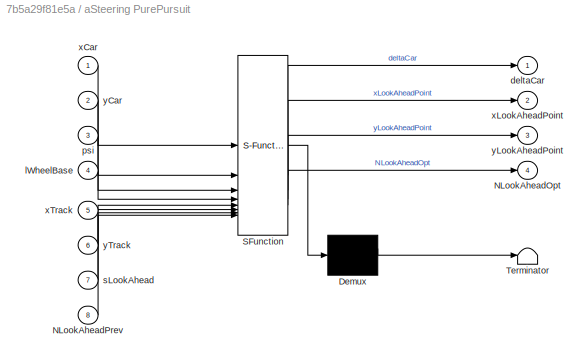
BLOCK [SubSystem] aSteering PurePursuit
  ErrorFcn = Stateflow.Translate.translate
  PermitHierarchicalResolution = ExplicitOnly
  SFBlockType = MATLAB Function
  TreatAsAtomicUnit = on
BLOCK [Demux] aSteering PurePursuit/ Demux 
  Outputs = 1
BLOCK [S-Function] aSteering PurePursuit/ SFunction 
  EnableBusSupport = on
  FunctionName = sf_sfun
  PortCounts = [8 5]
  SFcnIsStateOwnerBlock = off
  SFunctionDeploymentMode = off
  Tag = Stateflow S-Function 9
BLOCK [Terminator] aSteering PurePursuit/ Terminator 
BLOCK [Outport] aSteering PurePursuit/NLookAheadOpt
  Port = 4
BLOCK [Inport] aSteering PurePursuit/NLookAheadPrev
  Port = 8
BLOCK [Outport] aSteering PurePursuit/deltaCar
BLOCK [Inport] aSteering PurePursuit/lWheelBase
  Port = 4
BLOCK [Inport] aSteering PurePursuit/psi
  Port = 3
BLOCK [Inport] aSteering PurePursuit/sLookAhead
  Port = 7
BLOCK [Inport] aSteering PurePursuit/xCar
BLOCK [Outport] aSteering PurePursuit/xLookAheadPoint
  Port = 2
BLOCK [Inport] aSteering PurePursuit/xTrack
  Port = 5
BLOCK [Inport] aSteering PurePursuit/yCar
  Port = 2
BLOCK [Outport] aSteering PurePursuit/yLookAheadPoint
  Port = 3
BLOCK [Inport] aSteering PurePursuit/yTrack
  Port = 6
BLOCK [SubSystem] arg_f
  ErrorFcn = Stateflow.Translate.translate
  LibrarySourceBlock = simulink/User-Defined\nFunctions/MATLAB Function
  PermitHierarchicalResolution = ExplicitOnly
  SFBlockType = MATLAB Function
  TreatAsAtomicUnit = on
BLOCK [Demux] arg_f/ Demux 
  Outputs = 1
BLOCK [S-Function] arg_f/ SFunction 
  EnableBusSupport = on
  FunctionName = sf_sfun
  PortCounts = [4 2]
  SFcnIsStateOwnerBlock = off
  SFunctionDeploymentMode = off
  Tag = Stateflow S-Function 3
BLOCK [Terminator] arg_f/ Terminator 
BLOCK [Inport] arg_f/B_f
BLOCK [Inport] arg_f/C_f
  Port = 2
BLOCK [Inport] arg_f/E_f
  Port = 4
BLOCK [Inport] arg_f/alpha_f
  Port = 3
BLOCK [Outport] arg_f/arg_f
BLOCK [SubSystem] arg_f1
  ErrorFcn = Stateflow.Translate.translate
  LibrarySourceBlock = simulink/User-Defined\nFunctions/MATLAB Function
  PermitHierarchicalResolution = ExplicitOnly
  SFBlockType = MATLAB Function
  TreatAsAtomicUnit = on
BLOCK [Demux] arg_f1/ Demux 
  Outputs = 1
BLOCK [S-Function] arg_f1/ SFunction 
  EnableBusSupport = on
  FunctionName = sf_sfun
  PortCounts = [4 2]
  SFcnIsStateOwnerBlock = off
  SFunctionDeploymentMode = off
  Tag = Stateflow S-Function 6
BLOCK [Terminator] arg_f1/ Terminator 
BLOCK [Inport] arg_f1/B_f
BLOCK [Inport] arg_f1/C_f
  Port = 2
BLOCK [Inport] arg_f1/E_f
  Port = 4
BLOCK [Outport] arg_f1/arg_f
BLOCK [Inport] arg_f1/sRatio_f
  Port = 3
BLOCK [SubSystem] arg_r
  ErrorFcn = Stateflow.Translate.translate
  LibrarySourceBlock = simulink/User-Defined\nFunctions/MATLAB Function
  PermitHierarchicalResolution = ExplicitOnly
  SFBlockType = MATLAB Function
  TreatAsAtomicUnit = on
BLOCK [Demux] arg_r/ Demux 
  Outputs = 1
BLOCK [S-Function] arg_r/ SFunction 
  EnableBusSupport = on
  FunctionName = sf_sfun
  PortCounts = [4 2]
  SFcnIsStateOwnerBlock = off
  SFunctionDeploymentMode = off
  Tag = Stateflow S-Function 4
BLOCK [Terminator] arg_r/ Terminator 
BLOCK [Inport] arg_r/B_r
BLOCK [Inport] arg_r/C_r
  Port = 2
BLOCK [Inport] arg_r/E_r
  Port = 4
BLOCK [Inport] arg_r/alpha_r
  Port = 3
BLOCK [Outport] arg_r/arg_r
BLOCK [SubSystem] arg_r1
  ErrorFcn = Stateflow.Translate.translate
  LibrarySourceBlock = simulink/User-Defined\nFunctions/MATLAB Function
  PermitHierarchicalResolution = ExplicitOnly
  SFBlockType = MATLAB Function
  TreatAsAtomicUnit = on
BLOCK [Demux] arg_r1/ Demux 
  Outputs = 1
BLOCK [S-Function] arg_r1/ SFunction 
  EnableBusSupport = on
  FunctionName = sf_sfun
  PortCounts = [4 2]
  SFcnIsStateOwnerBlock = off
  SFunctionDeploymentMode = off
  Tag = Stateflow S-Function 7
BLOCK [Terminator] arg_r1/ Terminator 
BLOCK [Inport] arg_r1/B_r
BLOCK [Inport] arg_r1/C_r
  Port = 2
BLOCK [Inport] arg_r1/E_r
  Port = 4
BLOCK [Outport] arg_r1/arg_r
BLOCK [Inport] arg_r1/sRatio_r
  Port = 3
BLOCK [SubSystem] sStep
  ErrorFcn = Stateflow.Translate.translate
  PermitHierarchicalResolution = ExplicitOnly
  SFBlockType = MATLAB Function
  TreatAsAtomicUnit = on
BLOCK [Demux] sStep/ Demux 
  Outputs = 1
BLOCK [S-Function] sStep/ SFunction 
  EnableBusSupport = on
  FunctionName = sf_sfun
  PortCounts = [4 2]
  SFcnIsStateOwnerBlock = off
  SFunctionDeploymentMode = off
  Tag = Stateflow S-Function 17
BLOCK [Terminator] sStep/ Terminator 
BLOCK [Outport] sStep/sStep
BLOCK [Inport] sStep/xCar
BLOCK [Inport] sStep/xCarPrev
  Port = 3
BLOCK [Inport] sStep/yCar
  Port = 2
BLOCK [Inport] sStep/yCarPrev
  Port = 4
BLOCK [SubSystem] vCar
  ErrorFcn = Stateflow.Translate.translate
  LibrarySourceBlock = simulink/User-Defined\nFunctions/MATLAB Function
  PermitHierarchicalResolution = ExplicitOnly
  SFBlockType = MATLAB Function
  TreatAsAtomicUnit = on
BLOCK [Demux] vCar/ Demux 
  Outputs = 1
BLOCK [S-Function] vCar/ SFunction 
  EnableBusSupport = on
  FunctionName = sf_sfun
  PortCounts = [2 2]
  SFcnIsStateOwnerBlock = off
  SFunctionDeploymentMode = off
  Tag = Stateflow S-Function 12
BLOCK [Terminator] vCar/ Terminator 
BLOCK [Outport] vCar/vCar
BLOCK [Inport] vCar/vxCar
BLOCK [Inport] vCar/vyCar
  Port = 2
BLOCK [Goto] w
  GotoTag = psi_dot
ANNOTATION (root): Car Position Equations
ANNOTATION (root): Data Output
ANNOTATION (root): FxCar Calculation
ANNOTATION (root): Fz Calculation
ANNOTATION (root): Longitudinal Controller
ANNOTATION (root): Pacejka Magic Formula(Fy_f and Fy_r and FyTyreNet Computation)
ANNOTATION (root): Powertrain Model
ANNOTATION (root): Pure Pursuit
ANNOTATION (root): Slip Angle Calculation
ANNOTATION (root): Slip Ratio Calculation
ANNOTATION (root): Vehicle Dynamics
LINE 1-D Lookup Table1:1 -> Scope16:1
LINE 1-D Lookup Table:1 -> Rate Transition7:1
LINE Clock1:1 -> Enabled Subsystem:1
LINE Clock:1 -> Switch6:2
LINE Compare To Constant1:1 -> Logical Operator:2
LINE Compare To Constant3:1 -> Switch5:2
LINE Compare To Constant4:1 -> Stop Simulation1:1
LINE Compare To Constant:1 -> Logical Operator:1
LINE Constant10:1 -> arg_f:1
LINE Constant11:1 -> arg_f:2
LINE Constant12:1 -> Gain:1
LINE Constant13:1 -> arg_f:4
LINE Constant14:1 -> arg_r:1
LINE Constant15:1 -> arg_r:2
LINE Constant16:1 -> Product11:1
LINE Constant17:1 -> arg_r:4
LINE Constant18:1 -> Product7:1
LINE Constant19:1 -> Product8:1
LINE Constant1:1 -> MATLAB Function:3
LINE Constant20:1 -> arg_f1:1
LINE Constant21:1 -> arg_f1:2
LINE Constant22:1 -> arg_f1:4
LINE Constant23:1 -> arg_r1:1
LINE Constant24:1 -> arg_r1:2
LINE Constant25:1 -> arg_r1:4
LINE Constant26:1 -> Product12:1
LINE Constant27:1 -> Product14:1
LINE Constant28:1 -> Product21:1
LINE Constant29:1 -> Product23:1
LINE Constant2:1 -> MATLAB Function1:3
LINE Constant30:1 -> Product24:2
LINE Constant31:1 -> Product25:2
LINE Constant32:1 -> Divide4:2
LINE Constant33:1 -> Divide3:2
LINE Constant34:1 -> Divide2:2
LINE Constant35:1 -> aSteering PurePursuit:5
LINE Constant36:1 -> aSteering PurePursuit:6
LINE Constant37:1 -> aSteering PurePursuit:4
LINE Constant38:1 -> Product20:2
LINE Constant3:1 -> Sum2:1
NET Constant40:1 -> Goto:1, Switch2:3
LINE Constant41:1 -> Switch2:1
LINE Constant42:1 -> Product22:2
LINE Constant43:1 -> Gain1:1
LINE Constant44:1 -> Divide6:3
LINE Constant46:1 -> Switch3:1
LINE Constant47:1 -> MATLAB Function4:5
LINE Constant48:1 -> MATLAB Function4:6
LINE Constant49:1 -> NLap:5
LINE Constant4:1 -> Product4:1
LINE Constant50:1 -> MATLAB Function5:3
LINE Constant51:1 -> MATLAB Function5:4
LINE Constant52:1 -> NLap:6
LINE Constant53:1 -> Divide7:2
LINE Constant54:1 -> Divide7:4
LINE Constant55:1 -> Switch6:3
LINE Constant56:1 -> Longitudinal Controller Stanley:3
LINE Constant57:1 -> Longitudinal Controller Stanley:4
LINE Constant58:1 -> MATLAB Function6:3
LINE Constant59:1 -> Switch5:3
LINE Constant5:1 -> MATLAB Function2:9
NET Constant60:1 -> Min2:2, Min3:2
LINE Constant6:1 -> Sum3:1
LINE Constant7:1 -> Divide:2
LINE Constant8:1 -> Product5:1
LINE Constant9:1 -> Divide1:2
LINE Constant:1 -> Switch1:3
LINE Cos1:1 -> Product3:2
LINE Cos2:1 -> Product16:2
LINE Cos3:1 -> Product18:2
LINE Cos:1 -> Product:2
LINE Dead Zone:1 -> Saturation10:1
LINE Detect Increase:1 -> Enabled Subsystem:enable
LINE Divide1:1 -> Goto11:1
NET Divide2:1 -> Goto9:1, Integrator6:1, Scope:1
LINE Divide3:1 -> Integrator Limited2:1
NET Divide4:1 -> Integrator8:1, Scope2:1
LINE Divide5:1 -> Gain2:1
LINE Divide6:1 -> Max:2
LINE Divide7:1 -> Sqrt:1
LINE Divide:1 -> Goto10:1
NET Enabled Subsystem/In1:1 -> Enabled Subsystem/Memory1:1, Enabled Subsystem/Sum14:1
LINE Enabled Subsystem/Memory1:1 -> Enabled Subsystem/Sum14:2
LINE Enabled Subsystem/Sum14:1 -> Enabled Subsystem/Out1:1
NET Enabled Subsystem:1 -> Goto50:1, Scope25:1
LINE From101:1 -> Rate Transition2:1
LINE From102:1 -> Rate Transition1:1
LINE From103:1 -> Rate Transition:1
LINE From10:1 -> MATLAB Function:2
NET From110:1 -> Memory4:1, NLap:2
NET From111:1 -> Memory3:1, NLap:1
NET From112:1 -> Memory7:1, sStep:2
NET From113:1 -> Memory6:1, sStep:1
NET From117:1 -> Min2:1, Min3:1, Mux2:2
LINE From11:1 -> MATLAB Function:5
LINE From128:1 -> Mux4:2
LINE From12:1 -> MATLAB Function1:1
LINE From138:1 -> Gain6:1
LINE From13:1 -> MATLAB Function1:2
LINE From14:1 -> MATLAB Function1:4
LINE From15:1 -> Product4:2
LINE From16:1 -> Product5:2
LINE From17:1 -> arg_f:3
LINE From18:1 -> Product7:2
LINE From19:1 -> arg_r:3
LINE From1:1 -> Cos:1
LINE From20:1 -> Product8:2
LINE From21:1 -> Square:1
LINE From22:1 -> Product11:2
LINE From23:1 -> arg_f1:3
LINE From24:1 -> MATLAB Function2:1
LINE From25:1 -> MATLAB Function2:3
LINE From26:1 -> MATLAB Function2:4
LINE From27:1 -> Product12:2
LINE From28:1 -> MATLAB Function2:2
LINE From29:1 -> arg_r1:3
LINE From2:1 -> Product1:1
LINE From30:1 -> Product14:2
LINE From31:1 -> Cos2:1
LINE From32:1 -> Sin6:1
LINE From33:1 -> Product17:2
LINE From34:1 -> Cos3:1
LINE From35:1 -> Sin7:1
LINE From36:1 -> Product19:2
LINE From37:1 -> Scope15:3
LINE From38:1 -> Scope15:1
LINE From39:1 -> Scope15:2
LINE From3:1 -> Sin:1
NET From40:1 -> Gain8:1, Mux2:1
LINE From41:1 -> Mux:1
LINE From42:1 -> Sum11:1
LINE From43:1 -> Sum10:1
LINE From44:1 -> Product20:1
LINE From45:1 -> Product21:2
LINE From46:1 -> Product21:3
LINE From47:1 -> Sin8:1
NET From48:1 -> Compare To Constant1:1, Product22:1, Scope6:1
LINE From49:1 -> GearBox:1
LINE From4:1 -> Product2:1
LINE From50:1 -> Product23:2
LINE From51:1 -> Product23:3
LINE From52:1 -> Product24:1
LINE From53:1 -> Sin10:1
LINE From54:1 -> Product25:1
LINE From55:1 -> Min:1
LINE From56:1 -> Switch1:2
LINE From57:1 -> Divide6:1
LINE From58:1 -> Divide6:2
LINE From5:1 -> Sin1:1
LINE From60:1 -> Compare To Constant:1
NET From61:1 -> MATLAB Function4:1, MATLAB Function4:2
LINE From62:1 -> MATLAB Function4:3
LINE From63:1 -> MATLAB Function4:4
LINE From64:1 -> Product27:2
NET From65:1 -> Scope6:2, Switch4:1
LINE From66:1 -> Switch4:2
LINE From67:1 -> Rate Transition5:1
LINE From68:1 -> MATLAB Function2:5
LINE From69:1 -> MATLAB Function2:7
LINE From6:1 -> Product3:1
LINE From70:1 -> MATLAB Function2:6
LINE From71:1 -> MATLAB Function2:8
LINE From72:1 -> Rate Transition6:1
LINE From73:1 -> 1-D Lookup Table:1
LINE From74:1 -> Mux:2
LINE From75:1 -> Min1:1
LINE From76:1 -> Min1:2
LINE From77:1 -> Sum12:2
LINE From78:1 -> MATLAB Function6:1
LINE From79:1 -> MATLAB Function6:2
LINE From7:1 -> Cos1:1
LINE From80:1 -> Mux:3
LINE From81:1 -> Mux:4
LINE From82:1 -> Scope17:1
LINE From83:1 -> Scope17:2
LINE From84:1 -> Scope17:3
LINE From85:1 -> Mux1:1
LINE From86:1 -> Mux1:2
LINE From87:1 -> Mux1:3
LINE From88:1 -> Mux1:4
LINE From8:1 -> MATLAB Function:4
LINE From9:1 -> MATLAB Function:1
LINE From:1 -> Product:1
LINE Gain1:1 -> Max:1
LINE Gain2:1 -> Switch3:3
LINE Gain3:1 -> Unit Delay2:1
LINE Gain4:1 -> Lowpass Filter2:1
LINE Gain5:1 -> Sum9:2
LINE Gain6:1 -> Saturation12:1
LINE Gain7:1 -> Scope13:2
LINE Gain8:1 -> Scope14:1
LINE Gain:1 -> Product10:1
LINE GearBox:1 -> Switch2:2
LINE Integrator Limited1:1 -> Goto18:1
NET Integrator Limited2:1 -> Min:2, Scope3:1
LINE Integrator Limited:1 -> Goto17:1
NET Integrator1:1 -> Goto4:1, XY Graph:2
NET Integrator4:1 -> Longitudinal Controller Stanley:2, Scope8:2
LINE Integrator6:1 -> Saturation3:1
LINE Integrator8:1 -> Switch1:1
LINE Integrator9:1 -> Goto1:1
NET Integrator:1 -> Goto3:1, XY Graph:1
LINE Logical Operator:1 -> Switch3:2
LINE Longitudinal Controller Stanley:1 -> Sum9:1
LINE Longitudinal Controller Stanley:2 -> Gain5:1
LINE Lowpass Filter2:1 -> Switch6:1
LINE Lowpass Filter:1 -> Goto48:1
LINE MATLAB Function1:1 -> Goto8:1
LINE MATLAB Function2:1 -> Integrator Limited:1
LINE MATLAB Function2:2 -> Integrator Limited1:1
LINE MATLAB Function4:1 -> Goto23:1
LINE MATLAB Function4:2 -> Goto24:1
LINE MATLAB Function5:1 -> Rate Transition8:1
LINE MATLAB Function5:2 -> Terminator1:1
LINE MATLAB Function5:3 -> Unit Delay1:1
LINE MATLAB Function6:1 -> Goto28:1
LINE MATLAB Function6:2 -> Goto29:1
LINE MATLAB Function:1 -> Goto7:1
LINE Max:1 -> Divide5:2
LINE Memory3:1 -> NLap:3
LINE Memory4:1 -> NLap:4
NET Memory5:1 -> Compare To Constant4:1, Sum14:2
LINE Memory6:1 -> sStep:3
LINE Memory7:1 -> sStep:4
LINE Memory8:1 -> Sum15:2
LINE Memory:1 -> Switch4:3
LINE Min1:1 -> Gain3:1
LINE Min2:1 -> Gain7:1
LINE Min3:1 -> Scope13:1
NET Min:1 -> Goto22:1, vCar:2
LINE Mux1:1 -> To Workspace3:1
LINE Mux2:1 -> To Workspace1:1
LINE Mux4:1 -> To Workspace2:1
LINE Mux:1 -> To Workspace:1
LINE NLap:1 -> Switch5:1
LINE Product10:1 -> Sum4:1
LINE Product11:1 -> Sum4:2
LINE Product12:1 -> Product13:2
NET Product13:1 -> Goto19:1, Product16:1
LINE Product14:1 -> Product15:2
NET Product15:1 -> Goto20:1, Sum6:2
LINE Product16:1 -> Sum6:1
LINE Product17:1 -> Sum7:2
LINE Product18:1 -> Sum8:1
LINE Product19:1 -> Sum8:2
LINE Product1:1 -> Sum:2
LINE Product20:1 -> Sum13:3
LINE Product21:1 -> Sum10:2
LINE Product22:1 -> Divide5:1
LINE Product23:1 -> Sum11:2
LINE Product24:1 -> Sum13:1
LINE Product25:1 -> Sum13:2
NET Product27:1 -> Goto25:1, Scope5:1
LINE Product2:1 -> Sum1:1
LINE Product3:1 -> Sum1:2
LINE Product4:1 -> Sum2:2
LINE Product5:1 -> Sum3:2
NET Product6:1 -> Goto12:1, Product18:1
LINE Product7:1 -> Product6:2
LINE Product8:1 -> Product9:2
NET Product9:1 -> Goto13:1, Sum8:3
LINE Product:1 -> Sum:1
LINE Rate Transition1:1 -> aSteering PurePursuit:2
LINE Rate Transition2:1 -> aSteering PurePursuit:3
LINE Rate Transition3:1 -> Lowpass Filter:1
LINE Rate Transition4:1 -> aSteering PurePursuit:7
LINE Rate Transition5:1 -> MATLAB Function5:1
LINE Rate Transition6:1 -> MATLAB Function5:2
LINE Rate Transition7:1 -> MATLAB Function5:5
NET Rate Transition8:1 -> 1-D Lookup Table1:1, Saturation5:1
LINE Rate Transition:1 -> aSteering PurePursuit:1
LINE Saturation10:1 -> Rate Transition3:1
LINE Saturation12:1 -> Rate Transition4:1
LINE Saturation15:1 -> aSteering PurePursuit:8
NET Saturation3:1 -> Goto6:1, Scope1:1, vCar:1
LINE Saturation5:1 -> Divide7:1
NET Saturation6:1 -> Goto27:1, Scope10:1
LINE Sin10:1 -> Product24:3
LINE Sin1:1 -> Product2:2
LINE Sin2:1 -> Product6:1
LINE Sin3:1 -> Product9:1
LINE Sin4:1 -> Product13:1
LINE Sin5:1 -> Product15:1
LINE Sin6:1 -> Product17:1
LINE Sin7:1 -> Product19:1
LINE Sin8:1 -> Product20:3
LINE Sin:1 -> Product1:2
LINE Sqrt:1 -> Gain4:1
LINE Square:1 -> Product10:2
LINE Sum10:1 -> Divide2:1
LINE Sum11:1 -> Divide3:1
LINE Sum12:1 -> Saturation6:1
LINE Sum13:1 -> Divide4:1
NET Sum14:1 -> Detect Increase:1, Memory5:1, Mux4:1, Scope11:1
NET Sum15:1 -> Compare To Constant3:1, Memory8:1, Scope12:1
LINE Sum1:1 -> Integrator1:1
LINE Sum2:1 -> Divide:1
LINE Sum3:1 -> Divide1:1
LINE Sum4:1 -> Sum5:1
LINE Sum5:1 -> Goto15:1
LINE Sum6:1 -> Sum7:1
LINE Sum7:1 -> Sum5:2
LINE Sum8:1 -> Goto16:1
LINE Sum9:1 -> Integrator4:1
LINE Sum:1 -> Integrator:1
NET Switch1:1 -> Integrator9:1, w:1
LINE Switch2:1 -> Terminator:1
NET Switch3:1 -> Product27:1, Scope4:1
NET Switch4:1 -> Goto26:1, Memory:1
LINE Switch5:1 -> Sum14:1
NET Switch6:1 -> Scope16:2, Sum12:1
LINE Unit Delay1:1 -> MATLAB Function5:6
LINE Unit Delay2:1 -> Divide7:3
LINE Unit Delay3:1 -> Saturation15:1
LINE aSteering PurePursuit:1 -> Dead Zone:1
LINE aSteering PurePursuit:2 -> LookAheadPoint:1
LINE aSteering PurePursuit:3 -> LookAheadPoint:2
LINE aSteering PurePursuit:4 -> Unit Delay3:1
LINE arg_f1:1 -> Sin4:1
LINE arg_f:1 -> Sin2:1
LINE arg_r1:1 -> Sin5:1
LINE arg_r:1 -> Sin3:1
LINE sStep:1 -> Sum15:1
LINE vCar:1 -> Goto5:1
note: NET lines group one-source signal fan-out (src -> all destinations, sorted); 1:1 wires keep LINE
CHART aSteering
PurePursuit states=1 transitions=1
  STATE_LABEL 'eML_blk_kernel()'
  STATE_LABEL 'SCRIPT:\nfunction [deltaCar,xLookAheadPoint,yLookAheadPoint,NLookAheadOpt] = aSteering(xCar,yCar,psi,lWheelBase,xTrack,yTrack,sLookAhead,NLookAheadPrev)\n\n\nNLookAheadOpt=NLookAheadPrev;\nsLookAheadOpt=sqrt((xTrack(NLookAheadOpt)-xCar)^2+(yTrack(NLookAheadOpt)-yCar)^2)-sLookAhead;\n\nfor N=NLookAheadOpt+1:min(NLookAheadOpt+100,length(xTrack))\n    \n    NN=N; %mod(N-1,length(xTrack)-1)+1\n    \n    sTemp=sq...<+544ch>'
CHART GearBox states=2 transitions=3
  STATE_LABEL 'Gear1\n\nen:\nGear = 1;'
  STATE_LABEL 'Gear2\n\nen:\nGear = 2;'
CHART vCar states=1 transitions=1
  STATE_LABEL 'eML_blk_kernel()'
  STATE_LABEL 'SCRIPT:\nfunction vCar = fcn(vxCar, vyCar)\n\nvCar = sqrt((vxCar)^2 + (vyCar)^2);\n\nend'
CHART MATLAB Function4 states=1 transitions=1
  STATE_LABEL 'eML_blk_kernel()'
  STATE_LABEL 'SCRIPT:\nfunction [w_wfDer, w_wrDer] = fcn(Torque_wheel_f, Torque_wheel_r, Fx_f, Fx_r, I_wheel, reffWheel)\n\nw_wfDer = (1/I_wheel)*(Torque_wheel_f-reffWheel*Fx_f);\n\nw_wrDer = (1/I_wheel)*(Torque_wheel_r-reffWheel*Fx_r);\n\nend\n'
CHART MATLAB Function5 states=1 transitions=1
  STATE_LABEL 'eML_blk_kernel()'
  STATE_LABEL 'SCRIPT:\nfunction [KMax, KCurrent, NClosestPt] = fcn(xCar, yCar, xTraj, yTraj, sAnticipation, NPrevPt)\n\nNClosestPt = NPrevPt;\n\n%%\n\nNTemp = max(NClosestPt, 2);\nsTemp = sqrt((xTraj(NTemp)-xCar)^2+(yTraj(NTemp)-yCar)^2);\n\nKList = zeros(1, length(xTraj));\n\nwhile sTemp<sAnticipation && NTemp<length(xTraj)-1\n\n    %Curvature calculation\n\n    A=[xTraj(NTemp-1);yTraj(NTemp-1);0];\n    B=[xTraj(NTemp)  ;yTraj...<+452ch>'
CHART MATLAB Function6 states=1 transitions=1
  STATE_LABEL 'eML_blk_kernel()'
  STATE_LABEL 'SCRIPT:\nfunction [vxCarDer_f, vxCarDer_r] = fcn(psi_dot, vxCarDer, l_wb)\n\nvxCarDer_f = vxCarDer + psi_dot^2*l_wb/2;\nvxCarDer_r = vxCarDer - psi_dot^2*l_wb/2;\n\nend\n'
CHART NLap states=1 transitions=1
  STATE_LABEL 'eML_blk_kernel()'
  STATE_LABEL 'SCRIPT:\nfunction BNewLap ...\n         = NLap(xCar,yCar,...\n                xCarPrev,yCarPrev,...\n                xStartLine,yStartLine)\nBNewLap=0;\n            \nif xCar==xCarPrev && yCar==yCarPrev\n    BNewLap=0;\nend\n\n% https://ericleong.me/research/circle-line/\n\nx1=xCar;            y1=yCar;\nx2=xCarPrev;        y2=yCarPrev;\nx3=xStartLine(1);   y3=yStartLine(1);\nx4=xStartLine(2);   y4=yStartLine(2);\n...<+404ch>'
CHART sStep states=1 transitions=1
  STATE_LABEL 'eML_blk_kernel()'
  STATE_LABEL 'SCRIPT:\nfunction sStep ...\n         = sStep(xCar,yCar,...\n                xCarPrev,yCarPrev)\n\nsStep=sqrt((xCar-xCarPrev)^2+(yCar-yCarPrev)^2)\n\nend'
CHART MATLAB Function1 states=1 transitions=1
  STATE_LABEL 'eML_blk_kernel()'
  STATE_LABEL 'SCRIPT:\nfunction alpha_r = fcn(vyCar, psi_dot, l_r, vxCar)\n\nalpha_r = -atan((vyCar-(psi_dot*l_r))/vxCar);\n\nend\n'
CHART MATLAB Function states=1 transitions=1
  STATE_LABEL 'eML_blk_kernel()'
  STATE_LABEL 'SCRIPT:\nfunction alpha_f = fcn(vyCar, psi_dot, l_f, vxCar, delta)\n\nalpha_f = -atan((vyCar+psi_dot*l_f)/vxCar)+delta;\n\nend'
CHART arg_f states=1 transitions=1
  STATE_LABEL 'eML_blk_kernel()'
  STATE_LABEL 'SCRIPT:\nfunction arg_f = fcn(B_f, C_f, alpha_f, E_f)\n\narg_f = C_f*atan(B_f*alpha_f-E_f*(B_f*alpha_f-atan(B_f*alpha_f)));\n\nend'
CHART arg_r states=1 transitions=1
  STATE_LABEL 'eML_blk_kernel()'
  STATE_LABEL 'SCRIPT:\nfunction arg_r = fcn(B_r, C_r, alpha_r, E_r)\n\narg_r = C_r*atan(B_r*alpha_r-E_r*(B_r*alpha_r-atan(B_r*alpha_r)));\n\nend\n'
CHART MATLAB Function2 states=1 transitions=1
  STATE_LABEL 'eML_blk_kernel()'
  STATE_LABEL 'SCRIPT:\nfunction [slip_dot_f, slip_dot_r]= fcn(w_wfDer, w_wrDer,...\n                                       slip_f, slip_r,...\n                                       vxWheel_f, vxWheel_r,...\n                                       vxWheelDer_f, vxWheelDer_r,...\n                                       reffWheel)\n\n% s_dot_f = (w_wfDer*reff/vxCar)-(w_wf*reff*vxCarDer)/(vxCar*vxCar);\n% s_dot_r = (w_wrDer...<+536ch>'
CHART arg_f1 states=1 transitions=1
  STATE_LABEL 'eML_blk_kernel()'
  STATE_LABEL 'SCRIPT:\nfunction arg_f = fcn(B_f, C_f, sRatio_f, E_f)\n\narg_f = C_f*atan((B_f*sRatio_f)-E_f*((B_f*sRatio_f)-atan(B_f*sRatio_f)));\n\nend'
CHART arg_r1 states=1 transitions=1
  STATE_LABEL 'eML_blk_kernel()'
  STATE_LABEL 'SCRIPT:\nfunction arg_r = fcn(B_r, C_r, sRatio_r, E_r)\n\narg_r = C_r*atan((B_r*sRatio_r)-E_r*((B_r*sRatio_r)-atan(B_r*sRatio_r)));\n\nend\n'
CHART  states=0 transitions=0
CHART  states=0 transitions=0
CHART  states=0 transitions=0
CHART  states=0 transitions=0
CHART  states=0 transitions=0
CHART  states=0 transitions=0
CHART  states=0 transitions=0
CHART  states=0 transitions=0
CHART  states=0 transitions=0
CHART  states=0 transitions=0
CHART  states=0 transitions=0
CHART  states=0 transitions=0
CHART  states=0 transitions=0
CHART  states=0 transitions=0
CHART  states=0 transitions=0
